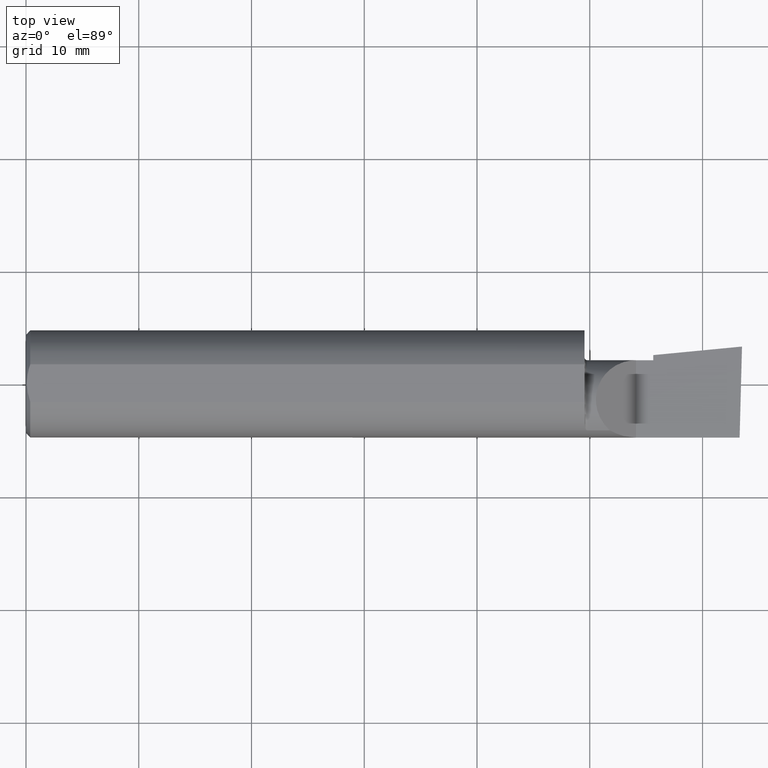
[diagram: clean part render]
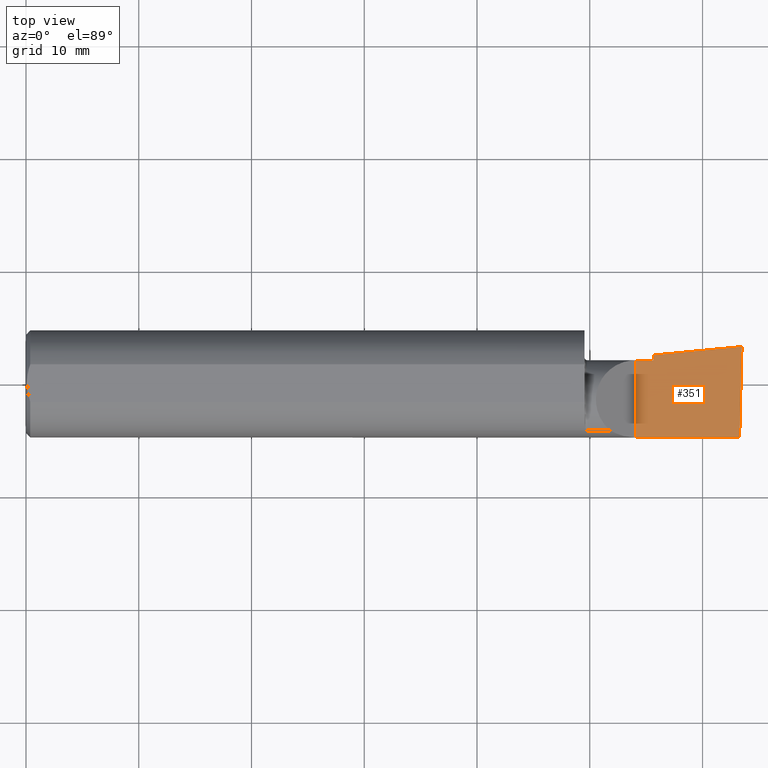
[diagram: same view with one face highlighted and labeled with its STEP entity id]
A machine part, top view. The second image highlights one B-rep face of the part: STEP entity #351.
In plain terms, the highlighted planar face has unit normal (-0, 0, -1).
Its self-contained STEP definition (entity closure, byte-faithful):
#28 = VECTOR ( 'NONE', #196, 39.37007874015748143 ) ;
#33 = VERTEX_POINT ( 'NONE', #296 ) ;
#42 = CARTESIAN_POINT ( 'NONE',  ( 0.5470260790800310913, -0.05740000000000000657, 2.701812985571357332E-16 ) ) ;
#43 = ORIENTED_EDGE ( 'NONE', *, *, #306, .F. ) ;
#46 = VERTEX_POINT ( 'NONE', #343 ) ;
#49 = DIRECTION ( 'NONE',  ( -1.000000000000000000, 0.000000000000000000, 1.033731667140896077E-16 ) ) ;
#62 = AXIS2_PLACEMENT_3D ( 'NONE', #470, #425, #49 ) ;
#79 = VERTEX_POINT ( 'NONE', #300 ) ;
#91 = VECTOR ( 'NONE', #524, 39.37007874015748143 ) ;
#99 = CARTESIAN_POINT ( 'NONE',  ( 2.491672876940991710, -0.1873499999999999888, 6.915950918908297591E-17 ) ) ;
#106 = EDGE_CURVE ( 'NONE', #493, #460, #346, .T. ) ;
#114 = ORIENTED_EDGE ( 'NONE', *, *, #330, .T. ) ;
#133 = EDGE_CURVE ( 'NONE', #79, #493, #145, .T. ) ;
#138 = DIRECTION ( 'NONE',  ( 0.02617694830779364323, 0.9996573249755593693, -2.665804247635780349E-18 ) ) ;
#141 = CARTESIAN_POINT ( 'NONE',  ( 2.490039159128059953, -0.2497391662021650194, 6.932588350567417155E-17 ) ) ;
#145 = LINE ( 'NONE', #337, #192 ) ;
#181 = VECTOR ( 'NONE', #616, 39.37007874015748143 ) ;
#189 = EDGE_LOOP ( 'NONE', ( #518, #114, #217, #331, #557, #43 ) ) ;
#192 = VECTOR ( 'NONE', #522, 39.37007874015748143 ) ;
#196 = DIRECTION ( 'NONE',  ( -6.829619984160658816E-18, 1.000000000000000000, 7.059994452165177242E-34 ) ) ;
#217 = ORIENTED_EDGE ( 'NONE', *, *, #411, .F. ) ;
#242 = CARTESIAN_POINT ( 'NONE',  ( 2.129999999999999893, -0.2500000000000000555, 1.065442715258197396E-16 ) ) ;
#296 = CARTESIAN_POINT ( 'NONE',  ( 2.499999999999978684, 0.1306500000000237194, 8.388614136560643774E-14 ) ) ;
#300 = CARTESIAN_POINT ( 'NONE',  ( 2.129999999999999893, 0.08264999999999990410, 1.065442715258197396E-16 ) ) ;
#306 = EDGE_CURVE ( 'NONE', #46, #79, #479, .T. ) ;
#310 = VERTEX_POINT ( 'NONE', #99 ) ;
#330 = EDGE_CURVE ( 'NONE', #310, #33, #468, .T. ) ;
#331 = ORIENTED_EDGE ( 'NONE', *, *, #106, .F. ) ;
#335 = VECTOR ( 'NONE', #138, 39.37007874015748854 ) ;
#337 = CARTESIAN_POINT ( 'NONE',  ( -9.564882787816664242E-19, 0.08264999999999998737, 3.267291166268304703E-16 ) ) ;
#343 = CARTESIAN_POINT ( 'NONE',  ( 2.129999999999999893, -0.1873499999999999888, 1.065442715258197396E-16 ) ) ;
#346 = LINE ( 'NONE', #427, #28 ) ;
#347 = LINE ( 'NONE', #531, #392 ) ;
#351 = ADVANCED_FACE ( 'NONE', ( #570 ), #385, .F. ) ;
#355 = DIRECTION ( 'NONE',  ( -1.000000000000000000, -0.000000000000000000, -0.000000000000000000 ) ) ;
#385 = PLANE ( 'NONE',  #62 ) ;
#392 = VECTOR ( 'NONE', #355, 39.37007874015748143 ) ;
#411 = EDGE_CURVE ( 'NONE', #460, #33, #424, .T. ) ;
#424 = LINE ( 'NONE', #42, #181 ) ;
#425 = DIRECTION ( 'NONE',  ( -1.033731667140896077E-16, 0.000000000000000000, -1.000000000000000000 ) ) ;
#427 = CARTESIAN_POINT ( 'NONE',  ( 2.189999999999999947, -0.2500000000000000555, 1.003418815229743595E-16 ) ) ;
#460 = VERTEX_POINT ( 'NONE', #495 ) ;
#468 = LINE ( 'NONE', #141, #335 ) ;
#470 = CARTESIAN_POINT ( 'NONE',  ( 2.500000000000000000, -0.2500000000000000555, 6.829619984160658046E-17 ) ) ;
#479 = LINE ( 'NONE', #242, #91 ) ;
#481 = EDGE_CURVE ( 'NONE', #310, #46, #347, .T. ) ;
#493 = VERTEX_POINT ( 'NONE', #527 ) ;
#495 = CARTESIAN_POINT ( 'NONE',  ( 2.189999999999999947, 0.1008003950587674363, 3.308097179827818849E-16 ) ) ;
#518 = ORIENTED_EDGE ( 'NONE', *, *, #481, .F. ) ;
#522 = DIRECTION ( 'NONE',  ( 1.000000000000000000, 6.829619984160658046E-18, 0.000000000000000000 ) ) ;
#524 = DIRECTION ( 'NONE',  ( -0.000000000000000000, 1.000000000000000000, -0.000000000000000000 ) ) ;
#527 = CARTESIAN_POINT ( 'NONE',  ( 2.189999999999999947, 0.08265000000000004288, 3.267291166268305196E-16 ) ) ;
#531 = CARTESIAN_POINT ( 'NONE',  ( 3.377502344341257155E-32, -0.1873499999999999610, 3.267291166268304703E-16 ) ) ;
#557 = ORIENTED_EDGE ( 'NONE', *, *, #133, .F. ) ;
#570 = FACE_OUTER_BOUND ( 'NONE', #189, .T. ) ;
#616 = DIRECTION ( 'NONE',  ( 0.9953961983671787417, 0.09584575252022456415, -1.028972571603813720E-16 ) ) ;